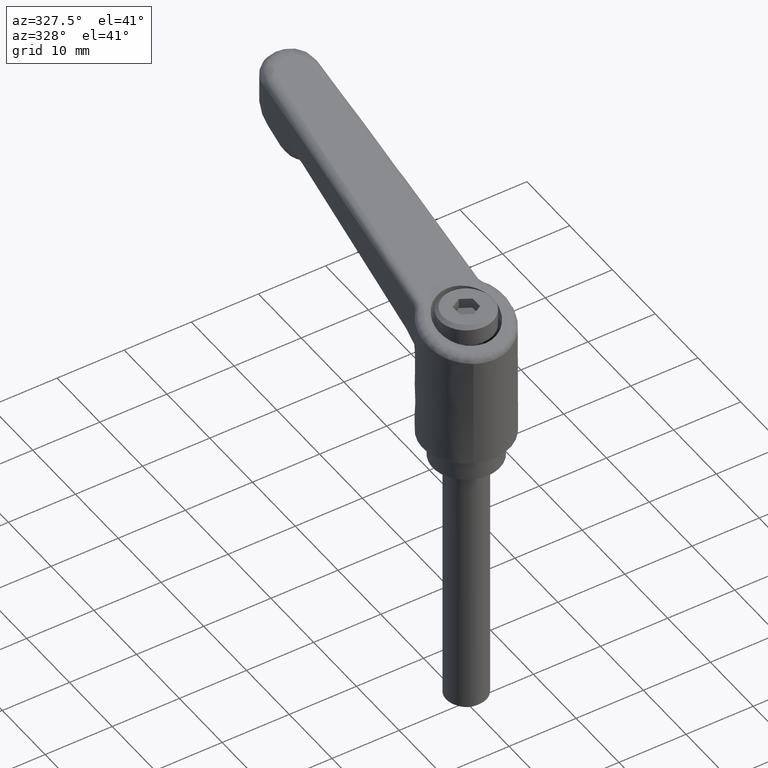
[diagram: clean part render]
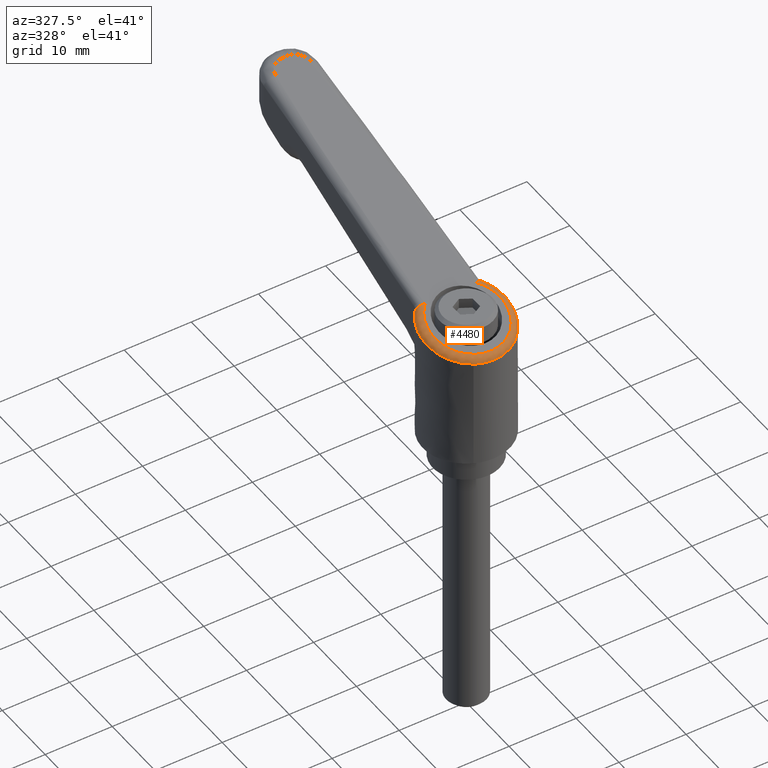
[diagram: same view with one face highlighted and labeled with its STEP entity id]
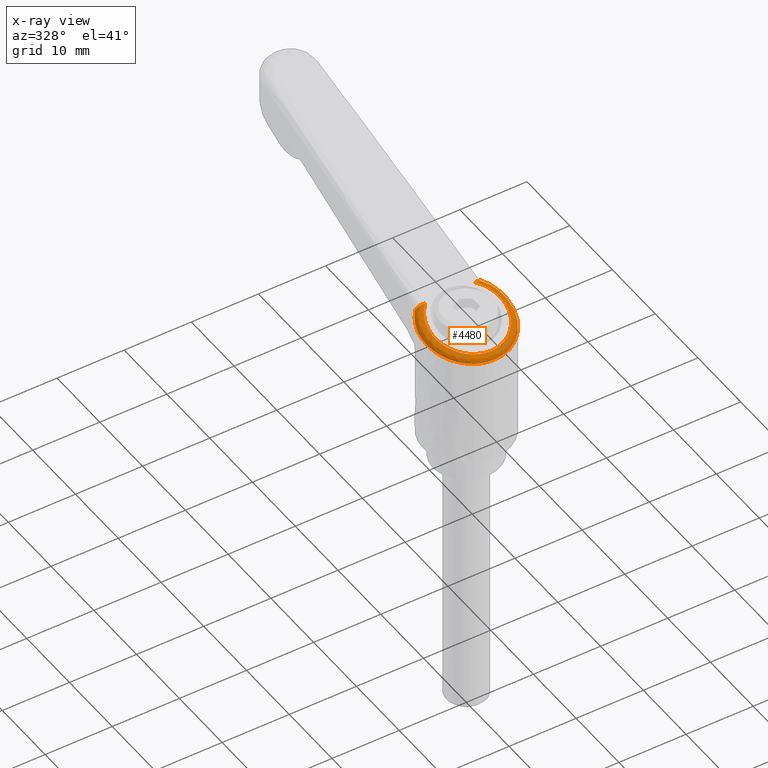
[diagram: x-ray of the same camera — body ghosted, the highlighted face saturated]
A machine part, auxiliary view. The second image highlights one B-rep face of the part: STEP entity #4480.
The next image is the same camera in x-ray: the body ghosted, the highlighted face saturated — about 0% of this face is hidden behind the body in this view.
In plain terms, the highlighted face is a freeform B-spline surface patch.
Its self-contained STEP definition (entity closure, byte-faithful):
#1834=CARTESIAN_POINT('',(-5.914549377455127,2.695415402290960,20.523462329197411));
#1835=VERTEX_POINT('',#1834);
#1836=CARTESIAN_POINT('',(4.181284398144875,4.976631469360600,22.927593921454701));
#1837=VERTEX_POINT('',#1836);
#1838=CARTESIAN_POINT('',(-5.914549377455127,2.695415402290960,20.523462329197411));
#1839=CARTESIAN_POINT('',(-5.767468709994789,3.018050032681049,20.558262812087339));
#1840=CARTESIAN_POINT('',(-5.301182019287443,3.853651795714690,20.668779228307841));
#1841=CARTESIAN_POINT('',(-4.206732189440376,5.079375608178806,20.933532965407728));
#1842=CARTESIAN_POINT('',(-2.814015380585587,5.926542746467091,21.256792115043400));
#1843=CARTESIAN_POINT('',(-0.987577848334026,6.523199363515083,21.711266700937738));
#1844=CARTESIAN_POINT('',(0.518911485796681,6.562515029084429,22.054976047597659));
#1845=CARTESIAN_POINT('',(1.794250847008617,6.257449203859983,22.359249025548280));
#1846=CARTESIAN_POINT('',(2.343493232298454,6.072421653768368,22.489192580688979));
#1847=CARTESIAN_POINT('',(2.848927994721092,5.851381513394752,22.609173933573960));
#1848=CARTESIAN_POINT('',(3.310269182823885,5.602640677292396,22.719054847962759));
#1849=CARTESIAN_POINT('',(3.726997584483854,5.332975164673110,22.818718920146711));
#1850=CARTESIAN_POINT('',(4.011130285577574,5.119872786720974,22.886882436381779));
#1851=CARTESIAN_POINT('',(4.156138781201793,4.998073743425447,22.921579422721091));
#1852=CARTESIAN_POINT('',(4.181284398144875,4.976631469360600,22.927593921454701));
#1853=B_SPLINE_CURVE_WITH_KNOTS('',3,(#1838,#1839,#1840,#1841,#1842,#1843,#1844,#1845,#1846,#1847,#1848,#1849,#1850,#1851,#1852),.UNSPECIFIED.,.F.,.U.,(4,1,1,1,1,1,1,1,1,1,1,1,4),(0.590929746980573,0.625689573868113,0.684593177289269,0.752063985464612,0.785550837866162,0.877717810244562,0.898032705466529,0.917397459694434,0.935812799731019,0.953279587977761,0.969798852578575,0.985371826641243,0.988662854138937),.UNSPECIFIED.);
#1854=EDGE_CURVE('',#1835,#1837,#1853,.T.);
#1880=CARTESIAN_POINT('',(4.181284398144875,-4.976631469360600,22.927593525127300));
#1881=VERTEX_POINT('',#1880);
#1887=CARTESIAN_POINT('',(-2.695512476938378,-5.914765310525878,21.289380024952852));
#1888=VERTEX_POINT('',#1887);
#1889=CARTESIAN_POINT('',(4.181284398144875,-4.976631469360600,22.927593525127300));
#1890=CARTESIAN_POINT('',(4.090702154850265,-5.053378178435955,22.905918263791008));
#1891=CARTESIAN_POINT('',(3.899519846976026,-5.204324874394157,22.860066988614602));
#1892=CARTESIAN_POINT('',(3.594591174289756,-5.420201626950793,22.787021189177679));
#1893=CARTESIAN_POINT('',(3.262692235999267,-5.626525155900386,22.707703611908940));
#1894=CARTESIAN_POINT('',(2.904133393788352,-5.820130650837180,22.622292078117450));
#1895=CARTESIAN_POINT('',(2.518726046743061,-5.997385070868498,22.530765628883099));
#1896=CARTESIAN_POINT('',(2.106811796597528,-6.154602889495299,22.433105206278402));
#1897=CARTESIAN_POINT('',(1.668916739738379,-6.287865385909345,22.329412402823650));
#1898=CARTESIAN_POINT('',(0.704775469981378,-6.507636025443151,22.099640482222139));
#1899=CARTESIAN_POINT('',(-0.573019085534677,-6.546654325501651,21.802538539095629));
#1900=CARTESIAN_POINT('',(-1.801454585564106,-6.266555267962660,21.510999240540912));
#1901=CARTESIAN_POINT('',(-2.411559984368332,-6.039669353817590,21.357719162218459));
#1902=CARTESIAN_POINT('',(-2.625726030908051,-5.946577705503771,21.306060068367412));
#1903=CARTESIAN_POINT('',(-2.695512476938378,-5.914765310525878,21.289380024952852));
#1904=B_SPLINE_CURVE_WITH_KNOTS('',3,(#1889,#1890,#1891,#1892,#1893,#1894,#1895,#1896,#1897,#1898,#1899,#1900,#1901,#1902,#1903),.UNSPECIFIED.,.F.,.U.,(4,1,1,1,1,1,1,1,1,1,1,1,4),(0.011339002814821,0.023162408093432,0.035602075254132,0.048614959416363,0.062201629669727,0.076362582625634,0.091098253527881,0.106409025298450,0.122295235960681,0.190526883254455,0.232580987687207,0.248311673399157,0.255996111147750),.UNSPECIFIED.);
#1905=EDGE_CURVE('',#1881,#1888,#1904,.T.);
#1970=CARTESIAN_POINT('',(-2.695512476938378,-5.914765310525878,21.289380024952852));
#1971=CARTESIAN_POINT('',(-2.881030407433096,-5.830197131631754,21.245038977967589));
#1972=CARTESIAN_POINT('',(-3.301118744832806,-5.614414090777096,21.147149355175980));
#1973=CARTESIAN_POINT('',(-3.908233789913735,-5.213518071823732,21.002179684529580));
#1974=CARTESIAN_POINT('',(-4.491702500123937,-4.718035807562639,20.863230603602339));
#1975=CARTESIAN_POINT('',(-4.987744527834972,-4.187767793079458,20.744168551972869));
#1976=CARTESIAN_POINT('',(-5.658428849469870,-3.294356354430471,20.583902148741540));
#1977=CARTESIAN_POINT('',(-6.312353611317384,-1.912610467373511,20.429860653468928));
#1978=CARTESIAN_POINT('',(-6.592020245980581,0.000145784310071,20.360852830179599));
#1979=CARTESIAN_POINT('',(-6.364157836166614,1.557564981405007,20.417227086909080));
#1980=CARTESIAN_POINT('',(-6.037645572010920,2.425372112541099,20.494334988898810));
#1981=CARTESIAN_POINT('',(-5.914549377455127,2.695415402290960,20.523462329197411));
#1982=B_SPLINE_CURVE_WITH_KNOTS('',3,(#1970,#1971,#1972,#1973,#1974,#1975,#1976,#1977,#1978,#1979,#1980,#1981),.UNSPECIFIED.,.F.,.U.,(4,1,1,1,1,1,1,1,1,4),(0.255996111147750,0.276423781504501,0.303149177105800,0.328493664012073,0.352464098916857,0.375068639120434,0.438914925397556,0.500379124790108,0.561836320899287,0.590929746980573),.UNSPECIFIED.);
#1983=EDGE_CURVE('',#1888,#1835,#1982,.T.);
#3423=CARTESIAN_POINT('',(4.163638524989050,4.968665385541600,23.097163784107750));
#3424=VERTEX_POINT('',#3423);
#3450=CARTESIAN_POINT('',(4.163638524989050,4.968665385541600,23.097163784107750));
#3451=CARTESIAN_POINT('',(4.172208192812438,4.968517627619216,23.069162933626011));
#3452=CARTESIAN_POINT('',(4.177769924184735,4.969163580543205,23.040957782431860));
#3453=CARTESIAN_POINT('',(4.182050701498064,4.971203731168734,22.998374147948208));
#3454=CARTESIAN_POINT('',(4.183171887586478,4.972492551553547,22.977013096985541));
#3455=CARTESIAN_POINT('',(4.182820104995639,4.974169231925617,22.955551963720549));
#3456=CARTESIAN_POINT('',(4.182272489821865,4.975351127609255,22.941470213553689));
#3457=CARTESIAN_POINT('',(4.181842713618806,4.975983088867379,22.934421165547519));
#3458=CARTESIAN_POINT('',(4.181284398144875,4.976631469360600,22.927593921454701));
#3459=B_SPLINE_CURVE_WITH_KNOTS('',3,(#3450,#3451,#3452,#3453,#3454,#3455,#3456,#3457,#3458),.UNSPECIFIED.,.F.,.U.,(4,2,1,2,4),(0.0,0.500000000000000,0.750000000000000,0.875000000000000,0.995680130532296),.UNSPECIFIED.);
#3460=EDGE_CURVE('',#3424,#1837,#3459,.T.);
#3515=CARTESIAN_POINT('',(3.741556348912950,3.758484842251940,24.024416672665250));
#3516=VERTEX_POINT('',#3515);
#3517=CARTESIAN_POINT('',(3.741556348912950,3.758484842251940,24.024416672665250));
#3518=CARTESIAN_POINT('',(3.745352722164541,3.794804025885900,24.025485554407851));
#3519=CARTESIAN_POINT('',(3.749577202288174,3.831595668805719,24.025412461033788));
#3520=CARTESIAN_POINT('',(3.758749316049852,3.904274807239717,24.022876210900659));
#3521=CARTESIAN_POINT('',(3.763715319865038,3.940423379098048,24.020421590387571));
#3522=CARTESIAN_POINT('',(3.779779685013938,4.048276663814265,24.009361039132930));
#3523=CARTESIAN_POINT('',(3.792035629711601,4.119394065420273,23.997092135354428));
#3524=CARTESIAN_POINT('',(3.819955362048432,4.259854285036708,23.961364958548501));
#3525=CARTESIAN_POINT('',(3.835338155111506,4.327735531976320,23.938246516025121));
#3526=CARTESIAN_POINT('',(3.868800581488037,4.457546080603265,23.881028846070372));
#3527=CARTESIAN_POINT('',(3.886941130802888,4.519744180278364,23.846840813000941));
#3528=CARTESIAN_POINT('',(3.926127485894837,4.637144545122141,23.765832548383251));
#3529=CARTESIAN_POINT('',(3.946572539304687,4.690568863338670,23.720258229422139));
#3530=CARTESIAN_POINT('',(3.978483973675151,4.762286350288108,23.643756392547751));
#3531=CARTESIAN_POINT('',(3.989329897490582,4.784779966897403,23.616890363169020));
#3532=CARTESIAN_POINT('',(4.011455299798000,4.826713833310592,23.560198454392818));
#3533=CARTESIAN_POINT('',(4.022638515802073,4.845948037142033,23.530607449315191));
#3534=CARTESIAN_POINT('',(4.055947550281950,4.897408895676183,23.439599799413092));
#3535=CARTESIAN_POINT('',(4.078064580427201,4.923921561853119,23.375393862421920));
#3536=CARTESIAN_POINT('',(4.111027278788478,4.951008749945906,23.273311067847910));
#3537=CARTESIAN_POINT('',(4.121955833812767,4.957850842354158,23.238367633844160));
#3538=CARTESIAN_POINT('',(4.143174364534928,4.966765980124219,23.168257163525929));
#3539=CARTESIAN_POINT('',(4.153534328962668,4.968903357074312,23.132876921460401));
#3540=CARTESIAN_POINT('',(4.163638524989056,4.968665385541600,23.097163784107750));
#3541=B_SPLINE_CURVE_WITH_KNOTS('',3,(#3517,#3518,#3519,#3520,#3521,#3522,#3523,#3524,#3525,#3526,#3527,#3528,#3529,#3530,#3531,#3532,#3533,#3534,#3535,#3536,#3537,#3538,#3539,#3540),.UNSPECIFIED.,.F.,.U.,(4,2,2,2,2,2,2,2,2,2,2,4),(0.0,0.062500000000001,0.125000000000002,0.250000000000003,0.375000000000003,0.500000000000004,0.625000000000005,0.687500000000003,0.750000000000001,0.874999999999998,0.937499999999999,1.0),.UNSPECIFIED.);
#3542=EDGE_CURVE('',#3516,#3424,#3541,.T.);
#3688=CARTESIAN_POINT('',(4.163638524989771,-4.968665385541330,23.097163784113349));
#3689=VERTEX_POINT('',#3688);
#3703=CARTESIAN_POINT('',(4.181284398144875,-4.976631469360600,22.927593525127300));
#3704=CARTESIAN_POINT('',(4.181842727731651,-4.975983077474349,22.934420890041050));
#3705=CARTESIAN_POINT('',(4.182272513764313,-4.975351104832515,22.941470073924151));
#3706=CARTESIAN_POINT('',(4.182820131393044,-4.974169201213294,22.955551955398970));
#3707=CARTESIAN_POINT('',(4.183171909990702,-4.972492525445594,22.977013089916259));
#3708=CARTESIAN_POINT('',(4.182050719924472,-4.971203709666276,22.998374142129759));
#3709=CARTESIAN_POINT('',(4.177769934676788,-4.969163568253246,23.040957779113040));
#3710=CARTESIAN_POINT('',(4.172208198043167,-4.968517621472947,23.069162931970901));
#3711=CARTESIAN_POINT('',(4.163638524989771,-4.968665385541330,23.097163784113349));
#3712=B_SPLINE_CURVE_WITH_KNOTS('',3,(#3703,#3704,#3705,#3706,#3707,#3708,#3709,#3710,#3711),.UNSPECIFIED.,.F.,.U.,(4,2,1,2,4),(0.004317592896361,0.124999999999977,0.249999999999955,0.499999999999970,1.0),.UNSPECIFIED.);
#3713=EDGE_CURVE('',#1881,#3689,#3712,.T.);
#3778=CARTESIAN_POINT('',(3.741556339639425,-3.758484852029455,24.024416670054251));
#3779=VERTEX_POINT('',#3778);
#3811=CARTESIAN_POINT('',(4.163638524989771,-4.968665385541330,23.097163784113349));
#3812=CARTESIAN_POINT('',(4.153529245882374,-4.968903476789263,23.132894887545920));
#3813=CARTESIAN_POINT('',(4.143154223186832,-4.966764003433637,23.168327075770041));
#3814=CARTESIAN_POINT('',(4.121883131427337,-4.957813781620311,23.238604482072969));
#3815=CARTESIAN_POINT('',(4.110937720230544,-4.950941241195141,23.273591548058580));
#3816=CARTESIAN_POINT('',(4.078100363703278,-4.923938754421079,23.375276774807169));
#3817=CARTESIAN_POINT('',(4.055995588315112,-4.897485188853751,23.439469571665779));
#3818=CARTESIAN_POINT('',(4.022601156036459,-4.845889279083258,23.530709012818889));
#3819=CARTESIAN_POINT('',(4.011348839322964,-4.826519929455452,23.560474992452932));
#3820=CARTESIAN_POINT('',(3.989301155362645,-4.784717575291861,23.616960231678579));
#3821=CARTESIAN_POINT('',(3.978487658397528,-4.762291007977880,23.643745893314751));
#3822=CARTESIAN_POINT('',(3.946657139850419,-4.690766224659898,23.720058739620569));
#3823=CARTESIAN_POINT('',(3.926244339759413,-4.637459013129312,23.765575921888839));
#3824=CARTESIAN_POINT('',(3.896877502890598,-4.549530685664882,23.826307232684570));
#3825=CARTESIAN_POINT('',(3.887399728059820,-4.519172381240916,23.845070483643099));
#3826=CARTESIAN_POINT('',(3.869237548777639,-4.457161497718112,23.879473960253549));
#3827=CARTESIAN_POINT('',(3.860518913182192,-4.425406040641242,23.895184676722611));
#3828=CARTESIAN_POINT('',(3.835407469163905,-4.328030285499902,23.938138044337069));
#3829=CARTESIAN_POINT('',(3.820039612429144,-4.260246950638842,23.961245870372039));
#3830=CARTESIAN_POINT('',(3.792088036805930,-4.119688751853808,23.997036296365810));
#3831=CARTESIAN_POINT('',(3.779821077806553,-4.048531257693738,24.009324528967909));
#3832=CARTESIAN_POINT('',(3.758385607573019,-3.904663878115852,24.024099161400471));
#3833=CARTESIAN_POINT('',(3.749238869269740,-3.831981977343015,24.026579712284050));
#3834=CARTESIAN_POINT('',(3.741556339639425,-3.758484852029455,24.024416670054251));
#3835=B_SPLINE_CURVE_WITH_KNOTS('',3,(#3811,#3812,#3813,#3814,#3815,#3816,#3817,#3818,#3819,#3820,#3821,#3822,#3823,#3824,#3825,#3826,#3827,#3828,#3829,#3830,#3831,#3832,#3833,#3834),.UNSPECIFIED.,.F.,.U.,(4,2,2,2,2,2,2,2,2,2,2,4),(0.0,0.062499999999996,0.124999999999993,0.249999999999986,0.312499999999985,0.374999999999983,0.499999999999985,0.562499999999987,0.624999999999988,0.749999999999993,0.874999999999997,1.0),.UNSPECIFIED.);
#3836=EDGE_CURVE('',#3689,#3779,#3835,.T.);
#4349=CARTESIAN_POINT('',(4.862823855145797,-4.309823927831809,23.081035562378982));
#4350=CARTESIAN_POINT('',(4.862185603303313,-4.310531915170226,23.085652663281476));
#4351=CARTESIAN_POINT('',(4.695293787637584,-4.495658356666780,24.292944677884822));
#4352=CARTESIAN_POINT('',(3.839919180108250,-3.645282529272168,24.052111060842826));
#4353=CARTESIAN_POINT('',(3.837239241585510,-3.642618252219069,24.051356515077497));
#4354=CARTESIAN_POINT('',(4.252952668511370,-4.995581862307039,22.935809634235415));
#4355=CARTESIAN_POINT('',(4.252129047450459,-4.996284011741337,22.940348817923010));
#4356=CARTESIAN_POINT('',(4.040172814769420,-5.176979911757748,24.108493149746913));
#4357=CARTESIAN_POINT('',(3.323962135844023,-4.225161806802885,23.906841608010058));
#4358=CARTESIAN_POINT('',(3.321682193834645,-4.222131846280614,23.906199682617459));
#4359=CARTESIAN_POINT('',(3.490085779684650,-5.564397196937937,22.754159606128432));
#4360=CARTESIAN_POINT('',(3.489076662207186,-5.565014077326588,22.758608326105072));
#4361=CARTESIAN_POINT('',(3.234342807166529,-5.720734618303353,23.881608982569549));
#4362=CARTESIAN_POINT('',(2.678612236726653,-4.706078052273944,23.725141158771809));
#4363=CARTESIAN_POINT('',(2.676808765630784,-4.702785262770535,23.724633385378247));
#4364=CARTESIAN_POINT('',(1.353690353911239,-6.507760876120495,22.245494442838577));
#4365=CARTESIAN_POINT('',(1.352487199307112,-6.508019343384270,22.249746032912991));
#4366=CARTESIAN_POINT('',(1.063641509728285,-6.570070516843874,23.270440682330218));
#4367=CARTESIAN_POINT('',(0.871717198108629,-5.503354067821583,23.216403742538656));
#4368=CARTESIAN_POINT('',(0.871062345969852,-5.499714395795588,23.216219366701676));
#4369=CARTESIAN_POINT('',(-0.130542680629738,-6.654302259750700,21.892152109639195));
#4370=CARTESIAN_POINT('',(-0.131750041706305,-6.654253389264403,21.896274738193320));
#4371=CARTESIAN_POINT('',(-0.412475833247814,-6.642890420707672,22.854834846306066));
#4372=CARTESIAN_POINT('',(-0.383419586648536,-5.626890995337534,22.863015730922410));
#4373=CARTESIAN_POINT('',(-0.383317226539150,-5.623311805852008,22.863044550757788));
#4374=CARTESIAN_POINT('',(-2.912266338144027,-5.984606964730411,21.230012421195283));
#4375=CARTESIAN_POINT('',(-2.913189101745915,-5.984128484854942,21.233918787733668));
#4376=CARTESIAN_POINT('',(-3.116257681358932,-5.878831496021119,22.093575912024356));
#4377=CARTESIAN_POINT('',(-2.735384481766579,-5.060032210650628,22.200812050996106));
#4378=CARTESIAN_POINT('',(-2.733966971551037,-5.056984854331691,22.201211155796951));
#4379=CARTESIAN_POINT('',(-4.197670197764235,-5.169702143997329,20.924080629846284));
#4380=CARTESIAN_POINT('',(-4.198311187861775,-5.169124715183920,20.927904987917401));
#4381=CARTESIAN_POINT('',(-4.336120286321139,-5.044980918725073,21.750119465161070));
#4382=CARTESIAN_POINT('',(-3.822014273672243,-4.370810595621948,21.894867753778520));
#4383=CARTESIAN_POINT('',(-3.820055847126336,-4.368242422862355,21.895419155403737));
#4384=CARTESIAN_POINT('',(-5.994998525544966,-2.899359092727692,20.496345970139107));
#4385=CARTESIAN_POINT('',(-5.995167143166882,-2.898906015458897,20.500055585597543));
#4386=CARTESIAN_POINT('',(-6.030305978308898,-2.804487607266472,21.273115747110257));
#4387=CARTESIAN_POINT('',(-5.341279538976844,-2.451144631290241,21.467113474130286));
#4388=CARTESIAN_POINT('',(-5.338571783398650,-2.449756054075204,21.467875851881704));
#4389=CARTESIAN_POINT('',(-6.500000000000002,-1.452331352535676,20.376171114728706));
#4390=CARTESIAN_POINT('',(-6.500000000000002,-1.452099775981496,20.379853423246814));
#4391=CARTESIAN_POINT('',(-6.500000000000007,-1.404240121194415,21.140871804925116));
#4392=CARTESIAN_POINT('',(-5.768110139365648,-1.227802810057068,21.346937873351070));
#4393=CARTESIAN_POINT('',(-5.765209976270142,-1.227103665273197,21.347754424090493));
#4394=CARTESIAN_POINT('',(-6.500000000000002,1.452331352535662,20.376171114728706));
#4395=CARTESIAN_POINT('',(-6.500000000000002,1.452099775981482,20.379853423246814));
#4396=CARTESIAN_POINT('',(-6.500000000000007,1.404240121194410,21.140871804925116));
#4397=CARTESIAN_POINT('',(-5.768110139365648,1.227802810057068,21.346937873351020));
#4398=CARTESIAN_POINT('',(-5.765209976270142,1.227103665273197,21.347754424090443));
#4399=CARTESIAN_POINT('',(-5.994998525544738,2.899359092728000,20.496345970139103));
#4400=CARTESIAN_POINT('',(-5.995167143166651,2.898906015459200,20.500055585597536));
#4401=CARTESIAN_POINT('',(-6.030305978308272,2.804487607265853,21.273115747110243));
#4402=CARTESIAN_POINT('',(-5.341279538976844,2.451144631290242,21.467113474130283));
#4403=CARTESIAN_POINT('',(-5.338571783398656,2.449756054075209,21.467875851881708));
#4404=CARTESIAN_POINT('',(-4.197670197764467,5.169702143997020,20.924080629846287));
#4405=CARTESIAN_POINT('',(-4.198311187862006,5.169124715183614,20.927904987917390));
#4406=CARTESIAN_POINT('',(-4.336120286321751,5.044980918725686,21.750119465161085));
#4407=CARTESIAN_POINT('',(-3.822014273672239,4.370810595621949,21.894867753778520));
#4408=CARTESIAN_POINT('',(-3.820055847126328,4.368242422862351,21.895419155403719));
#4409=CARTESIAN_POINT('',(-2.912266338144790,5.984606964730226,21.230012421195308));
#4410=CARTESIAN_POINT('',(-2.913189101746671,5.984128484854758,21.233918787733678));
#4411=CARTESIAN_POINT('',(-3.116257681358308,5.878831496021745,22.093575912021780));
#4412=CARTESIAN_POINT('',(-2.735384481766590,5.060032210650623,22.200812050996113));
#4413=CARTESIAN_POINT('',(-2.733966971551048,5.056984854331678,22.201211155796955));
#4414=CARTESIAN_POINT('',(-0.130542680628991,6.654302259750887,21.892152109639181));
#4415=CARTESIAN_POINT('',(-0.131750041705564,6.654253389264586,21.896274738193302));
#4416=CARTESIAN_POINT('',(-0.412475833248446,6.642890420707039,22.854834846308599));
#4417=CARTESIAN_POINT('',(-0.383419586648539,5.626890995337535,22.863015730922385));
#4418=CARTESIAN_POINT('',(-0.383317226539151,5.623311805852022,22.863044550757774));
#4419=CARTESIAN_POINT('',(1.353690353912419,6.507760876119958,22.245494442836790));
#4420=CARTESIAN_POINT('',(1.352487199308289,6.508019343383742,22.249746032911194));
#4421=CARTESIAN_POINT('',(1.063641509728644,6.570070516845056,23.270440682325528));
#4422=CARTESIAN_POINT('',(0.871717198108154,5.503354067824419,23.216403742538539));
#4423=CARTESIAN_POINT('',(0.871062345969373,5.499714395798418,23.216219366701534));
#4424=CARTESIAN_POINT('',(3.490085779648358,5.564397196953969,22.754159606121199));
#4425=CARTESIAN_POINT('',(3.489076662170884,5.565014077342618,22.758608326097839));
#4426=CARTESIAN_POINT('',(3.234342807127618,5.720734618317704,23.881608982561804));
#4427=CARTESIAN_POINT('',(2.678612236696951,4.706078052285259,23.725141158763435));
#4428=CARTESIAN_POINT('',(2.676808765601113,4.702785262781841,23.724633385369877));
#4429=CARTESIAN_POINT('',(4.252952668448216,4.995581862353903,22.935809634222675));
#4430=CARTESIAN_POINT('',(4.252129047387322,4.996284011788154,22.940348817909886));
#4431=CARTESIAN_POINT('',(4.040172814711653,5.176979911792145,24.108493149633968));
#4432=CARTESIAN_POINT('',(3.323962135850151,4.225161806879723,23.906841608012105));
#4433=CARTESIAN_POINT('',(3.321682193840969,4.222131846357576,23.906199682619842));
#4434=CARTESIAN_POINT('',(4.862823855070420,4.309823927916335,23.081035562362793));
#4435=CARTESIAN_POINT('',(4.862185603227946,4.310531915254716,23.085652663264931));
#4436=CARTESIAN_POINT('',(4.695293787565050,4.495658356741598,24.292944677768944));
#4437=CARTESIAN_POINT('',(3.839919180101429,3.645282529380114,24.052111060841220));
#4438=CARTESIAN_POINT('',(3.837239241578885,3.642618252327112,24.051356515076243));
#4446=(BOUNDED_SURFACE()B_SPLINE_SURFACE(2,3,((#4349,#4354,#4359,#4364,#4369,#4374,#4379,#4384,#4389,#4394,#4399,#4404,#4409,#4414,#4419,#4424,#4429,#4434),(#4350,#4355,#4360,#4365,#4370,#4375,#4380,#4385,#4390,#4395,#4400,#4405,#4410,#4415,#4420,#4425,#4430,#4435),(#4351,#4356,#4361,#4366,#4371,#4376,#4381,#4386,#4391,#4396,#4401,#4406,#4411,#4416,#4421,#4426,#4431,#4436),(#4352,#4357,#4362,#4367,#4372,#4377,#4382,#4387,#4392,#4397,#4402,#4407,#4412,#4417,#4422,#4427,#4432,#4437),(#4353,#4358,#4363,#4368,#4373,#4378,#4383,#4388,#4393,#4398,#4403,#4408,#4413,#4418,#4423,#4428,#4433,#4438)),.UNSPECIFIED.,.F.,.F.,.U.)B_SPLINE_SURFACE_WITH_KNOTS((3,1,1,3),(4,2,2,2,2,2,2,2,4),(0.0,0.011638800022346,1.912786986696636,1.922303581112497),(0.0,2.997282094405039,7.408151254188677,11.819020413972350,16.229889573756029,20.640758733539631,25.051627893323310,29.462497053106979,32.459779147388900),.UNSPECIFIED.)GEOMETRIC_REPRESENTATION_ITEM()RATIONAL_B_SPLINE_SURFACE(((1.004513719212923,1.004390447394773,1.004238760321922,1.003830087839222,1.003558799507614,1.003072044496227,1.002857692164443,1.002563241452404,1.002483228601368,1.002483228601368,1.002563241452405,1.002857692164442,1.003072044496219,1.003558799507622,1.003830087839214,1.004238760321921,1.004390447394761,1.004513719212907),(1.002256859606462,1.002195223697387,1.002119380160961,1.001915043919611,1.001779399753807,1.001536022248114,1.001428846082221,1.001281620726202,1.001241614300684,1.001241614300684,1.001281620726203,1.001428846082221,1.001536022248110,1.001779399753811,1.001915043919607,1.002119380160960,1.002195223697381,1.002256859606454),(0.631351639330058,0.641419601366286,0.653808318542443,0.687185769307795,0.709342663434064,0.749097337690665,0.766604105832525,0.790652737829896,0.797187616269496,0.797187616269496,0.790652737829819,0.766604105832605,0.749097337691309,0.709342663433421,0.687185769308475,0.653808318542537,0.641419601367245,0.631351639331385),(1.001845346383390,1.001794949096127,1.001732934784184,1.001565856981520,1.001454946019190,1.001255945692079,1.001168311906819,1.001047931455374,1.001015219756148,1.001015219756148,1.001047931455375,1.001168311906819,1.001255945692076,1.001454946019194,1.001565856981516,1.001732934784184,1.001794949096122,1.001845346383383),(1.003690692766780,1.003589898192254,1.003465869568369,1.003131713963039,1.002909892038381,1.002511891384158,1.002336623813638,1.002095862910749,1.002030439512297,1.002030439512297,1.002095862910750,1.002336623813638,1.002511891384152,1.002909892038387,1.003131713963033,1.003465869568368,1.003589898192245,1.003690692766767)))REPRESENTATION_ITEM('')SURFACE());
#4447=ORIENTED_EDGE('',*,*,#3542,.T.);
#4448=ORIENTED_EDGE('',*,*,#3460,.T.);
#4449=ORIENTED_EDGE('',*,*,#1854,.F.);
#4450=ORIENTED_EDGE('',*,*,#1983,.F.);
#4451=ORIENTED_EDGE('',*,*,#1905,.F.);
#4452=ORIENTED_EDGE('',*,*,#3713,.T.);
#4453=ORIENTED_EDGE('',*,*,#3836,.T.);
#4454=CARTESIAN_POINT('',(3.741556348912950,3.758484842251940,24.024416672665250));
#4455=CARTESIAN_POINT('',(2.613139403515386,4.959543020966351,23.706707060891489));
#4456=CARTESIAN_POINT('',(1.032099445580706,5.341404178719200,23.261559907365498));
#4457=CARTESIAN_POINT('',(-0.624181604022181,5.741437964070228,22.795228369715510));
#4458=CARTESIAN_POINT('',(-2.192471926375449,5.152285785134270,22.353670919257478));
#4459=CARTESIAN_POINT('',(-3.810883881900226,4.544304650248243,21.898001553269161));
#4460=CARTESIAN_POINT('',(-4.783181073866730,3.144328942083274,21.624247986692271));
#4461=CARTESIAN_POINT('',(-5.260095932126037,2.457636414384234,21.489970993525240));
#4462=CARTESIAN_POINT('',(-5.515229278830568,1.647916624146206,21.418137335884211));
#4463=CARTESIAN_POINT('',(-5.770869703846800,0.836587513332265,21.346160908627549));
#4464=CARTESIAN_POINT('',(-5.771016191066890,7.221335E-009,21.346119664654729));
#4465=CARTESIAN_POINT('',(-5.771162351260350,-0.834719852034760,21.346078512757369));
#4466=CARTESIAN_POINT('',(-5.515229283165072,-1.647916610380662,21.418137334663822));
#4467=CARTESIAN_POINT('',(-5.260924864110520,-2.455938530906754,21.489737604918268));
#4468=CARTESIAN_POINT('',(-4.783181082079061,-3.144328930253737,21.624247984380059));
#4469=CARTESIAN_POINT('',(-3.812428997375039,-4.543104676564713,21.897566520775499));
#4470=CARTESIAN_POINT('',(-2.192471939731651,-5.152285780113730,22.353670915496991));
#4471=CARTESIAN_POINT('',(-0.626072853114904,-5.741326532570756,22.794695882129719));
#4472=CARTESIAN_POINT('',(1.032099432001138,-5.341404181994691,23.261559903542128));
#4473=CARTESIAN_POINT('',(2.612481245364900,-4.960243541884735,23.706521754235709));
#4474=CARTESIAN_POINT('',(3.741556339639425,-3.758484852029455,24.024416670054251));
#4475=B_SPLINE_CURVE_WITH_KNOTS('',2,(#4454,#4455,#4456,#4457,#4458,#4459,#4460,#4461,#4462,#4463,#4464,#4465,#4466,#4467,#4468,#4469,#4470,#4471,#4472,#4473,#4474),.UNSPECIFIED.,.F.,.U.,(3,2,2,2,2,2,2,2,2,2,3),(0.0,0.125000000000000,0.250000000000000,0.375000000000000,0.437500000000000,0.500000000000000,0.562500000000000,0.625000000000000,0.750000000000000,0.875000000000000,1.0),.UNSPECIFIED.);
#4476=EDGE_CURVE('',#3516,#3779,#4475,.T.);
#4477=ORIENTED_EDGE('',*,*,#4476,.F.);
#4478=EDGE_LOOP('',(#4447,#4448,#4449,#4450,#4451,#4452,#4453,#4477));
#4479=FACE_OUTER_BOUND('',#4478,.T.);
#4480=ADVANCED_FACE('',(#4479),#4446,.T.);